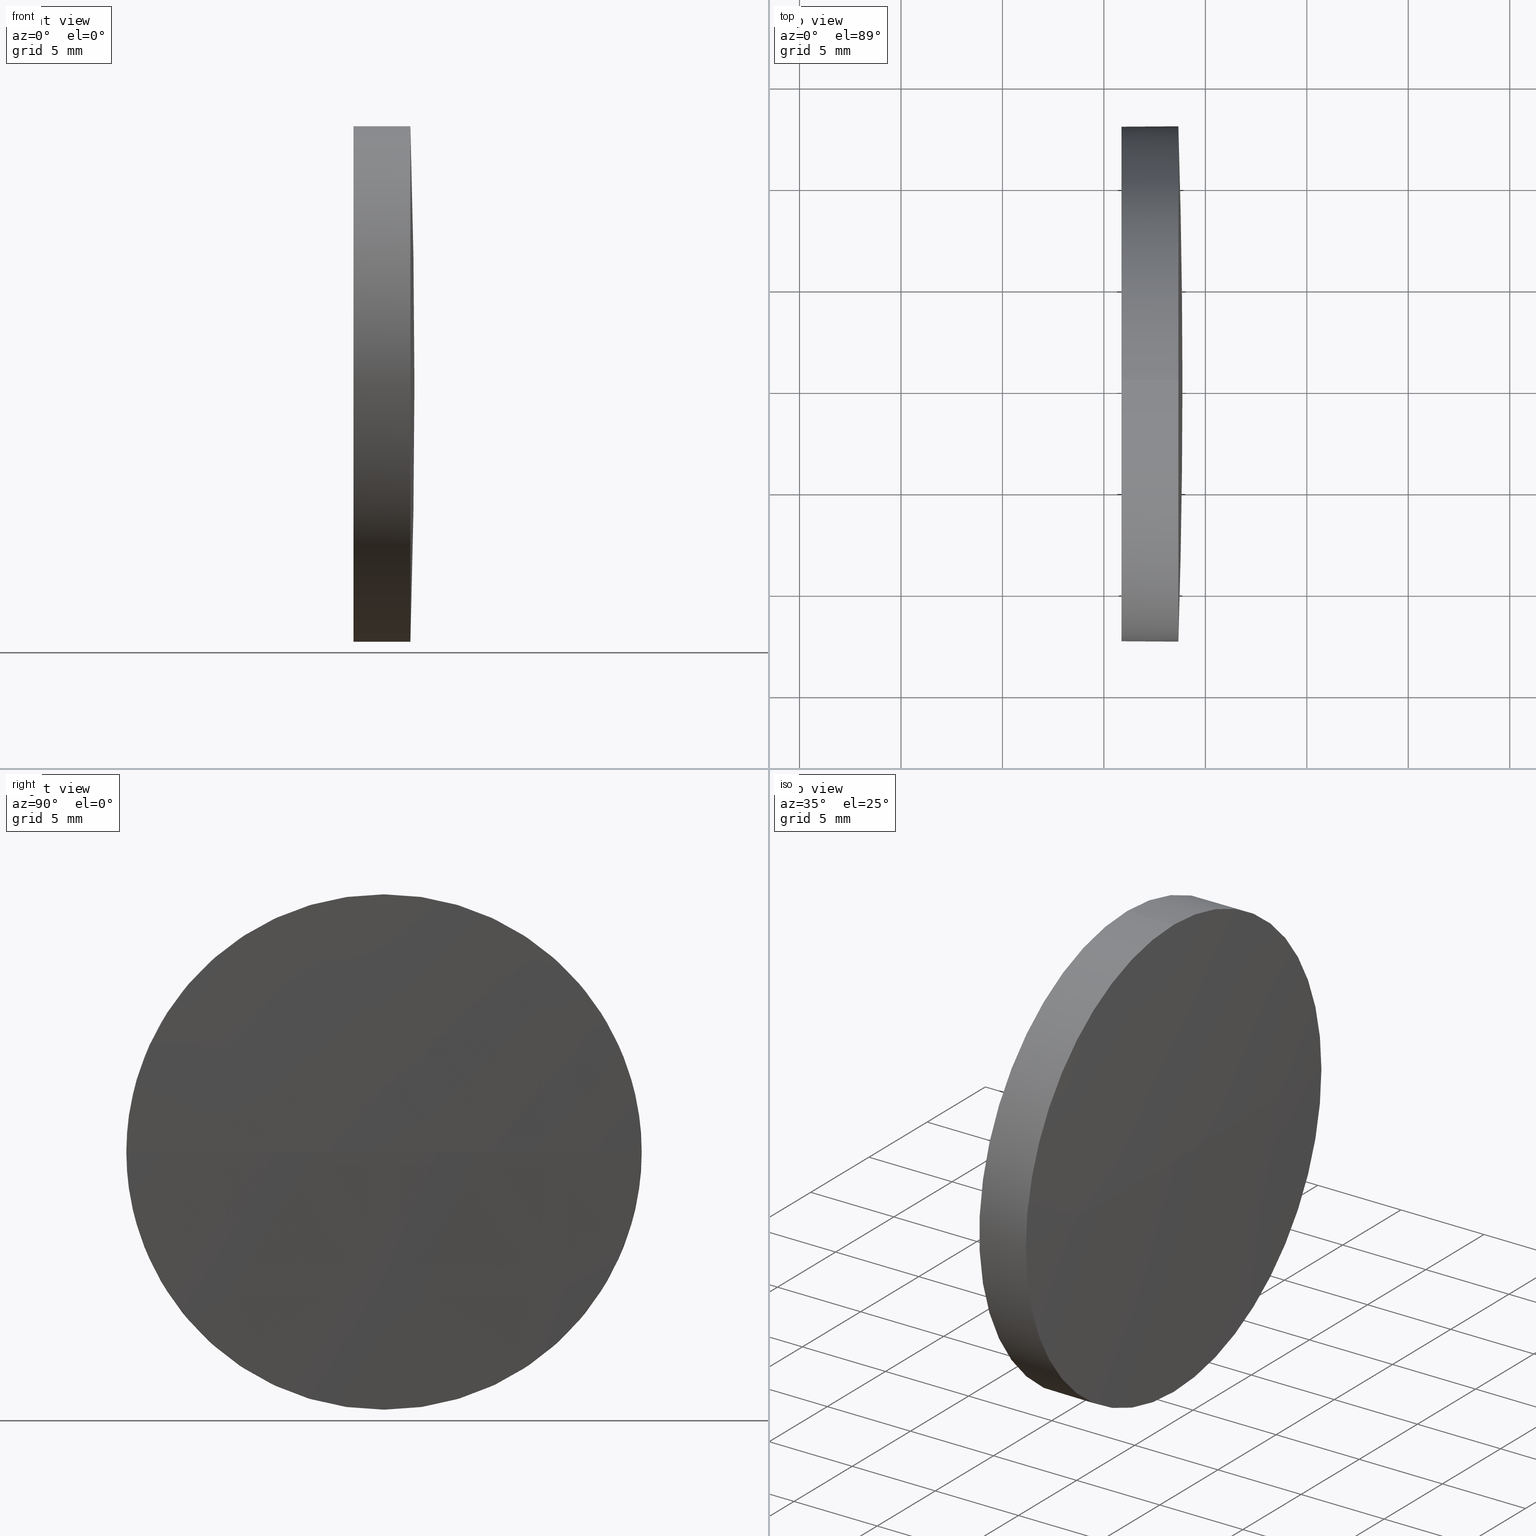
[diagram: canonical four-view strip — front | top / right | iso, engineering-drawing reading convention]
A machine part, canonical four-view strip (front | top / right | iso — engineering-drawing reading convention). The complete STEP part file that produces these views, byte-faithful:
ISO-10303-21;
HEADER;
FILE_DESCRIPTION (( 'STEP AP214' ),
    '1' );
FILE_NAME ('100383.STEP',
    '2019-06-05T01:23:28',
    ( '' ),
    ( '' ),
    'SwSTEP 2.0',
    'SolidWorks 2016',
    '' );
FILE_SCHEMA (( 'AUTOMOTIVE_DESIGN' ));
ENDSEC;

DATA;
#1 = ORIENTED_EDGE ( 'NONE', *, *, #10, .T. ) ;
#2 = DIRECTION ( 'NONE',  ( 0.0000000000000000000, -1.224646799147353200E-016, 1.000000000000000000 ) ) ;
#3 = COLOUR_RGB ( '',1.000000000000000000, 1.000000000000000000, 1.000000000000000000 ) ;
#4 = DIRECTION ( 'NONE',  ( 0.0000000000000000000, -1.000000000000000000, 0.0000000000000000000 ) ) ;
#5 = SURFACE_STYLE_USAGE ( .BOTH. , #74 ) ;
#6 = CARTESIAN_POINT ( 'NONE',  ( 115.8700467759432500, 65.23355492641219700, 0.0000000000000000000 ) ) ;
#7 = ORIENTED_EDGE ( 'NONE', *, *, #167, .T. ) ;
#8 = CARTESIAN_POINT ( 'NONE',  ( 110.1653732284884500, 65.23355492641219700, -12.70000000000000300 ) ) ;
#9 = EDGE_CURVE ( 'NONE', #121, #133, #85, .T. ) ;
#10 = EDGE_CURVE ( 'NONE', #133, #123, #38, .T. ) ;
#11 = PRODUCT_DEFINITION_CONTEXT ( 'detailed design', #165, 'design' ) ;
#12 = CIRCLE ( 'NONE', #127, 12.70000000000000300 ) ;
#13 =( GEOMETRIC_REPRESENTATION_CONTEXT ( 3 ) GLOBAL_UNCERTAINTY_ASSIGNED_CONTEXT ( ( #72 ) ) GLOBAL_UNIT_ASSIGNED_CONTEXT ( ( #58, #25, #120 ) ) REPRESENTATION_CONTEXT ( 'NONE', 'WORKASPACE' ) );
#14 = DIRECTION ( 'NONE',  ( 0.0000000000000000000, 0.0000000000000000000, 1.000000000000000000 ) ) ;
#15 = CYLINDRICAL_SURFACE ( 'NONE', #117, 12.70000000000000300 ) ;
#16 = DIRECTION ( 'NONE',  ( 0.0000000000000000000, 0.0000000000000000000, 1.000000000000000000 ) ) ;
#17 = EDGE_CURVE ( 'NONE', #39, #51, #90, .T. ) ;
#18 = FILL_AREA_STYLE_COLOUR ( '', #36 ) ;
#19 = ORIENTED_EDGE ( 'NONE', *, *, #86, .T. ) ;
#20 = VECTOR ( 'NONE', #153, 1000.000000000000000 ) ;
#21 = EDGE_CURVE ( 'NONE', #123, #51, #145, .T. ) ;
#22 = CLOSED_SHELL ( 'NONE', ( #173, #114, #185, #186, #100 ) ) ;
#23 = LINE ( 'NONE', #8, #91 ) ;
#24 = ADVANCED_BREP_SHAPE_REPRESENTATION ( '100383', ( #98, #67 ), #99 ) ;
#25 =( NAMED_UNIT ( * ) PLANE_ANGLE_UNIT ( ) SI_UNIT ( $, .RADIAN. ) );
#26 = CIRCLE ( 'NONE', #46, 12.70000000000000300 ) ;
#27 = FILL_AREA_STYLE ('',( #89 ) ) ;
#28 = DIRECTION ( 'NONE',  ( 0.0000000000000000000, -1.000000000000000000, -1.224646799147353200E-016 ) ) ;
#29 = DIRECTION ( 'NONE',  ( -1.000000000000000000, -0.0000000000000000000, -0.0000000000000000000 ) ) ;
#30 = DIRECTION ( 'NONE',  ( -1.000000000000000000, -0.0000000000000000000, -0.0000000000000000000 ) ) ;
#31 = APPLICATION_CONTEXT ( 'automotive_design' ) ;
#32 = DIRECTION ( 'NONE',  ( 0.0000000000000000000, 0.0000000000000000000, 1.000000000000000000 ) ) ;
#33 = ORIENTED_EDGE ( 'NONE', *, *, #17, .T. ) ;
#34 = APPLICATION_PROTOCOL_DEFINITION ( 'draft international standard', 'automotive_design', 1998, #31 ) ;
#35 = AXIS2_PLACEMENT_3D ( 'NONE', #119, #103, #53 ) ;
#36 = COLOUR_RGB ( '',1.000000000000000000, 1.000000000000000000, 1.000000000000000000 ) ;
#37 = EDGE_LOOP ( 'NONE', ( #44, #33, #81, #83 ) ) ;
#38 = CIRCLE ( 'NONE', #102, 12.70000000000000300 ) ;
#39 = VERTEX_POINT ( 'NONE', #136 ) ;
#40 = CARTESIAN_POINT ( 'NONE',  ( 118.6700467759432500, 65.23355492641219700, 0.0000000000000000000 ) ) ;
#41 = STYLED_ITEM ( 'NONE', ( #69 ), #24 ) ;
#42 = CARTESIAN_POINT ( 'NONE',  ( 115.8700467759432500, 65.23355492641219700, 12.70000000000000300 ) ) ;
#43 = CARTESIAN_POINT ( 'NONE',  ( 110.1653732284884500, 65.23355492641219700, 0.0000000000000000000 ) ) ;
#44 = ORIENTED_EDGE ( 'NONE', *, *, #86, .F. ) ;
#45 = APPLICATION_PROTOCOL_DEFINITION ( 'draft international standard', 'automotive_design', 1998, #165 ) ;
#46 = AXIS2_PLACEMENT_3D ( 'NONE', #118, #149, #148 ) ;
#47 = DIRECTION ( 'NONE',  ( 0.0000000000000000000, 0.0000000000000000000, 1.000000000000000000 ) ) ;
#48 = ORIENTED_EDGE ( 'NONE', *, *, #167, .F. ) ;
#49 = EDGE_CURVE ( 'NONE', #51, #121, #26, .T. ) ;
#50 = AXIS2_PLACEMENT_3D ( 'NONE', #138, #16, #182 ) ;
#51 = VERTEX_POINT ( 'NONE', #137 ) ;
#52 = STYLED_ITEM ( 'NONE', ( #112 ), #98 ) ;
#53 = DIRECTION ( 'NONE',  ( -1.000000000000000000, 0.0000000000000000000, 0.0000000000000000000 ) ) ;
#54 = DIRECTION ( 'NONE',  ( -1.000000000000000000, -0.0000000000000000000, -0.0000000000000000000 ) ) ;
#55 = ORIENTED_EDGE ( 'NONE', *, *, #9, .T. ) ;
#56 = SURFACE_STYLE_USAGE ( .BOTH. , #147 ) ;
#57 = PLANE ( 'NONE',  #77 ) ;
#58 =( LENGTH_UNIT ( ) NAMED_UNIT ( * ) SI_UNIT ( .MILLI., .METRE. ) );
#59 = CARTESIAN_POINT ( 'NONE',  ( 115.8700467759432500, 65.23355492641219700, -12.70000000000000300 ) ) ;
#60 =( NAMED_UNIT ( * ) PLANE_ANGLE_UNIT ( ) SI_UNIT ( $, .RADIAN. ) );
#61 = DIRECTION ( 'NONE',  ( -1.000000000000000000, -0.0000000000000000000, -0.0000000000000000000 ) ) ;
#62 =( LENGTH_UNIT ( ) NAMED_UNIT ( * ) SI_UNIT ( .MILLI., .METRE. ) );
#63 = AXIS2_PLACEMENT_3D ( 'NONE', #79, #124, #4 ) ;
#64 = SPHERICAL_SURFACE ( 'NONE', #63, 403.3249999999947000 ) ;
#65 = ORIENTED_EDGE ( 'NONE', *, *, #129, .F. ) ;
#66 =( GEOMETRIC_REPRESENTATION_CONTEXT ( 3 ) GLOBAL_UNCERTAINTY_ASSIGNED_CONTEXT ( ( #125 ) ) GLOBAL_UNIT_ASSIGNED_CONTEXT ( ( #140, #60, #95 ) ) REPRESENTATION_CONTEXT ( 'NONE', 'WORKASPACE' ) );
#67 = AXIS2_PLACEMENT_3D ( 'NONE', #157, #75, #122 ) ;
#68 = ORIENTED_EDGE ( 'NONE', *, *, #179, .T. ) ;
#69 = PRESENTATION_STYLE_ASSIGNMENT (( #5 ) ) ;
#70 = PRODUCT_DEFINITION_SHAPE ( 'NONE', 'NONE',  #80 ) ;
#71 = EDGE_LOOP ( 'NONE', ( #7, #176 ) ) ;
#72 = UNCERTAINTY_MEASURE_WITH_UNIT (LENGTH_MEASURE( 1.000000000000000100E-005 ), #58, 'distance_accuracy_value', 'NONE');
#73 = SURFACE_STYLE_FILL_AREA ( #27 ) ;
#74 = SURFACE_SIDE_STYLE ('',( #135 ) ) ;
#75 = DIRECTION ( 'NONE',  ( 0.0000000000000000000, 0.0000000000000000000, 1.000000000000000000 ) ) ;
#76 = DIRECTION ( 'NONE',  ( -1.000000000000000000, -0.0000000000000000000, -0.0000000000000000000 ) ) ;
#77 = AXIS2_PLACEMENT_3D ( 'NONE', #163, #108, #156 ) ;
#78 = ORIENTED_EDGE ( 'NONE', *, *, #49, .F. ) ;
#79 = CARTESIAN_POINT ( 'NONE',  ( -284.4549532240514500, 65.23355492641265100, 0.0000000000000000000 ) ) ;
#80 = PRODUCT_DEFINITION ( 'δ֪', '', #171, #11 ) ;
#81 = ORIENTED_EDGE ( 'NONE', *, *, #21, .F. ) ;
#82 = UNCERTAINTY_MEASURE_WITH_UNIT (LENGTH_MEASURE( 1.000000000000000100E-005 ), #62, 'distance_accuracy_value', 'NONE');
#83 = ORIENTED_EDGE ( 'NONE', *, *, #10, .F. ) ;
#84 = MECHANICAL_DESIGN_GEOMETRIC_PRESENTATION_REPRESENTATION (  '', ( #41 ), #66 ) ;
#85 = CIRCLE ( 'NONE', #175, 12.70000000000000300 ) ;
#86 = EDGE_CURVE ( 'NONE', #39, #133, #183, .T. ) ;
#87 = AXIS2_PLACEMENT_3D ( 'NONE', #166, #76, #32 ) ;
#88 = CARTESIAN_POINT ( 'NONE',  ( 118.6700467759432500, 65.23355492641219700, 0.0000000000000000000 ) ) ;
#89 = FILL_AREA_STYLE_COLOUR ( '', #3 ) ;
#90 = CIRCLE ( 'NONE', #161, 403.3249999999947000 ) ;
#91 = VECTOR ( 'NONE', #29, 1000.000000000000000 ) ;
#92 = CARTESIAN_POINT ( 'NONE',  ( 110.1653732284884500, 65.23355492641219700, 12.70000000000000300 ) ) ;
#93 =( NAMED_UNIT ( * ) SI_UNIT ( $, .STERADIAN. ) SOLID_ANGLE_UNIT ( ) );
#94 = CARTESIAN_POINT ( 'NONE',  ( 110.1653732284884500, 65.23355492641219700, 0.0000000000000000000 ) ) ;
#95 =( NAMED_UNIT ( * ) SI_UNIT ( $, .STERADIAN. ) SOLID_ANGLE_UNIT ( ) );
#96 = MECHANICAL_DESIGN_GEOMETRIC_PRESENTATION_REPRESENTATION (  '', ( #52 ), #13 ) ;
#97 = ORIENTED_EDGE ( 'NONE', *, *, #113, .T. ) ;
#98 = MANIFOLD_SOLID_BREP ( '��ת1', #22 ) ;
#99 =( GEOMETRIC_REPRESENTATION_CONTEXT ( 3 ) GLOBAL_UNCERTAINTY_ASSIGNED_CONTEXT ( ( #82 ) ) GLOBAL_UNIT_ASSIGNED_CONTEXT ( ( #62, #152, #93 ) ) REPRESENTATION_CONTEXT ( 'NONE', 'WORKASPACE' ) );
#100 = ADVANCED_FACE ( 'NONE', ( #101 ), #57, .F. ) ;
#101 = FACE_OUTER_BOUND ( 'NONE', #71, .T. ) ;
#102 = AXIS2_PLACEMENT_3D ( 'NONE', #146, #54, #164 ) ;
#103 = DIRECTION ( 'NONE',  ( 0.0000000000000000000, 0.0000000000000000000, -1.000000000000000000 ) ) ;
#104 = DIRECTION ( 'NONE',  ( 0.0000000000000000000, 0.0000000000000000000, 1.000000000000000000 ) ) ;
#105 = DIRECTION ( 'NONE',  ( -1.000000000000000000, -0.0000000000000000000, -0.0000000000000000000 ) ) ;
#106 = VERTEX_POINT ( 'NONE', #42 ) ;
#107 = FILL_AREA_STYLE ('',( #18 ) ) ;
#108 = DIRECTION ( 'NONE',  ( 1.000000000000000000, 0.0000000000000000000, 0.0000000000000000000 ) ) ;
#109 = PRESENTATION_LAYER_ASSIGNMENT (  '', '', ( #52 ) ) ;
#110 = ORIENTED_EDGE ( 'NONE', *, *, #113, .F. ) ;
#111 = SHAPE_DEFINITION_REPRESENTATION ( #70, #24 ) ;
#112 = PRESENTATION_STYLE_ASSIGNMENT (( #56 ) ) ;
#113 = EDGE_CURVE ( 'NONE', #123, #106, #174, .T. ) ;
#114 = ADVANCED_FACE ( 'NONE', ( #177 ), #159, .T. ) ;
#115 = CYLINDRICAL_SURFACE ( 'NONE', #158, 12.70000000000000300 ) ;
#116 = ORIENTED_EDGE ( 'NONE', *, *, #9, .F. ) ;
#117 = AXIS2_PLACEMENT_3D ( 'NONE', #94, #30, #47 ) ;
#118 = CARTESIAN_POINT ( 'NONE',  ( 118.6700467759432500, 65.23355492641219700, 0.0000000000000000000 ) ) ;
#119 = CARTESIAN_POINT ( 'NONE',  ( -284.4549532240514500, 65.23355492641265100, 0.0000000000000000000 ) ) ;
#120 =( NAMED_UNIT ( * ) SI_UNIT ( $, .STERADIAN. ) SOLID_ANGLE_UNIT ( ) );
#121 = VERTEX_POINT ( 'NONE', #180 ) ;
#122 = DIRECTION ( 'NONE',  ( 1.000000000000000000, 0.0000000000000000000, 0.0000000000000000000 ) ) ;
#123 = VERTEX_POINT ( 'NONE', #181 ) ;
#124 = DIRECTION ( 'NONE',  ( 0.0000000000000000000, 0.0000000000000000000, 1.000000000000000000 ) ) ;
#125 = UNCERTAINTY_MEASURE_WITH_UNIT (LENGTH_MEASURE( 1.000000000000000100E-005 ), #140, 'distance_accuracy_value', 'NONE');
#126 = DIRECTION ( 'NONE',  ( 0.0000000000000000000, 0.0000000000000000000, 1.000000000000000000 ) ) ;
#127 = AXIS2_PLACEMENT_3D ( 'NONE', #6, #105, #151 ) ;
#128 = EDGE_LOOP ( 'NONE', ( #184, #68, #48, #110, #172 ) ) ;
#129 = EDGE_CURVE ( 'NONE', #155, #106, #12, .T. ) ;
#130 = AXIS2_PLACEMENT_3D ( 'NONE', #40, #132, #14 ) ;
#131 = EDGE_LOOP ( 'NONE', ( #160, #55, #1, #97, #65 ) ) ;
#132 = DIRECTION ( 'NONE',  ( -1.000000000000000000, -0.0000000000000000000, -0.0000000000000000000 ) ) ;
#133 = VERTEX_POINT ( 'NONE', #139 ) ;
#134 = PRESENTATION_LAYER_ASSIGNMENT (  '', '', ( #41 ) ) ;
#135 = SURFACE_STYLE_FILL_AREA ( #107 ) ;
#136 = CARTESIAN_POINT ( 'NONE',  ( 118.8700467759432700, 65.23355492641262300, 0.0000000000000000000 ) ) ;
#137 = CARTESIAN_POINT ( 'NONE',  ( 118.6700467759432300, 77.93355492641259700, 1.555301434917131100E-015 ) ) ;
#138 = CARTESIAN_POINT ( 'NONE',  ( -284.4549532240514500, 65.23355492641265100, 0.0000000000000000000 ) ) ;
#139 = CARTESIAN_POINT ( 'NONE',  ( 118.6700467759432300, 52.53355492641226500, 0.0000000000000000000 ) ) ;
#140 =( LENGTH_UNIT ( ) NAMED_UNIT ( * ) SI_UNIT ( .MILLI., .METRE. ) );
#141 = CIRCLE ( 'NONE', #87, 12.70000000000000300 ) ;
#142 = EDGE_LOOP ( 'NONE', ( #169, #19, #116, #78 ) ) ;
#143 = FACE_OUTER_BOUND ( 'NONE', #142, .T. ) ;
#144 = CARTESIAN_POINT ( 'NONE',  ( -284.4549532240514500, 65.23355492641265100, 0.0000000000000000000 ) ) ;
#145 = CIRCLE ( 'NONE', #130, 12.70000000000000300 ) ;
#146 = CARTESIAN_POINT ( 'NONE',  ( 118.6700467759432500, 65.23355492641219700, 0.0000000000000000000 ) ) ;
#147 = SURFACE_SIDE_STYLE ('',( #73 ) ) ;
#148 = DIRECTION ( 'NONE',  ( 0.0000000000000000000, 0.0000000000000000000, 1.000000000000000000 ) ) ;
#149 = DIRECTION ( 'NONE',  ( -1.000000000000000000, -0.0000000000000000000, -0.0000000000000000000 ) ) ;
#150 = FACE_OUTER_BOUND ( 'NONE', #128, .T. ) ;
#151 = DIRECTION ( 'NONE',  ( 0.0000000000000000000, 0.0000000000000000000, 1.000000000000000000 ) ) ;
#152 =( NAMED_UNIT ( * ) PLANE_ANGLE_UNIT ( ) SI_UNIT ( $, .RADIAN. ) );
#153 = DIRECTION ( 'NONE',  ( -1.000000000000000000, -0.0000000000000000000, -0.0000000000000000000 ) ) ;
#154 = PRODUCT ( '100383', '100383', '', ( #168 ) ) ;
#155 = VERTEX_POINT ( 'NONE', #59 ) ;
#156 = DIRECTION ( 'NONE',  ( 0.0000000000000000000, 0.0000000000000000000, -1.000000000000000000 ) ) ;
#157 = CARTESIAN_POINT ( 'NONE',  ( 0.0000000000000000000, 0.0000000000000000000, 0.0000000000000000000 ) ) ;
#158 = AXIS2_PLACEMENT_3D ( 'NONE', #43, #61, #126 ) ;
#159 = SPHERICAL_SURFACE ( 'NONE', #50, 403.3249999999947000 ) ;
#160 = ORIENTED_EDGE ( 'NONE', *, *, #179, .F. ) ;
#161 = AXIS2_PLACEMENT_3D ( 'NONE', #144, #2, #28 ) ;
#162 = PRODUCT_RELATED_PRODUCT_CATEGORY ( 'part', '', ( #154 ) ) ;
#163 = CARTESIAN_POINT ( 'NONE',  ( 115.8700467759432500, 65.23355492641219700, 0.0000000000000000000 ) ) ;
#164 = DIRECTION ( 'NONE',  ( 0.0000000000000000000, 0.0000000000000000000, 1.000000000000000000 ) ) ;
#165 = APPLICATION_CONTEXT ( 'automotive_design' ) ;
#166 = CARTESIAN_POINT ( 'NONE',  ( 115.8700467759432500, 65.23355492641219700, 0.0000000000000000000 ) ) ;
#167 = EDGE_CURVE ( 'NONE', #106, #155, #141, .T. ) ;
#168 = PRODUCT_CONTEXT ( 'NONE', #31, 'mechanical' ) ;
#169 = ORIENTED_EDGE ( 'NONE', *, *, #17, .F. ) ;
#170 = FACE_OUTER_BOUND ( 'NONE', #131, .T. ) ;
#171 = PRODUCT_DEFINITION_FORMATION_WITH_SPECIFIED_SOURCE ( '�κ�', '', #154, .NOT_KNOWN. ) ;
#172 = ORIENTED_EDGE ( 'NONE', *, *, #21, .T. ) ;
#173 = ADVANCED_FACE ( 'NONE', ( #150 ), #15, .T. ) ;
#174 = LINE ( 'NONE', #92, #20 ) ;
#175 = AXIS2_PLACEMENT_3D ( 'NONE', #88, #178, #104 ) ;
#176 = ORIENTED_EDGE ( 'NONE', *, *, #129, .T. ) ;
#177 = FACE_OUTER_BOUND ( 'NONE', #37, .T. ) ;
#178 = DIRECTION ( 'NONE',  ( -1.000000000000000000, -0.0000000000000000000, -0.0000000000000000000 ) ) ;
#179 = EDGE_CURVE ( 'NONE', #121, #155, #23, .T. ) ;
#180 = CARTESIAN_POINT ( 'NONE',  ( 118.6700467759432500, 65.23355492641219700, -12.70000000000000300 ) ) ;
#181 = CARTESIAN_POINT ( 'NONE',  ( 118.6700467759432500, 65.23355492641219700, 12.70000000000000300 ) ) ;
#182 = DIRECTION ( 'NONE',  ( 0.0000000000000000000, -1.000000000000000000, 0.0000000000000000000 ) ) ;
#183 = CIRCLE ( 'NONE', #35, 403.3249999999947000 ) ;
#184 = ORIENTED_EDGE ( 'NONE', *, *, #49, .T. ) ;
#185 = ADVANCED_FACE ( 'NONE', ( #143 ), #64, .T. ) ;
#186 = ADVANCED_FACE ( 'NONE', ( #170 ), #115, .T. ) ;
ENDSEC;
END-ISO-10303-21;
